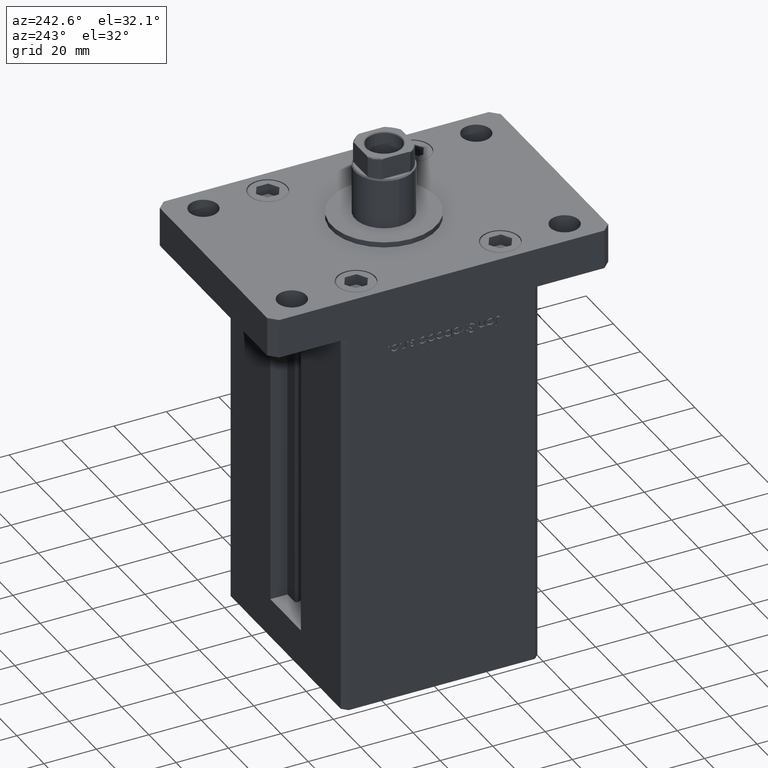
[diagram: clean part render]
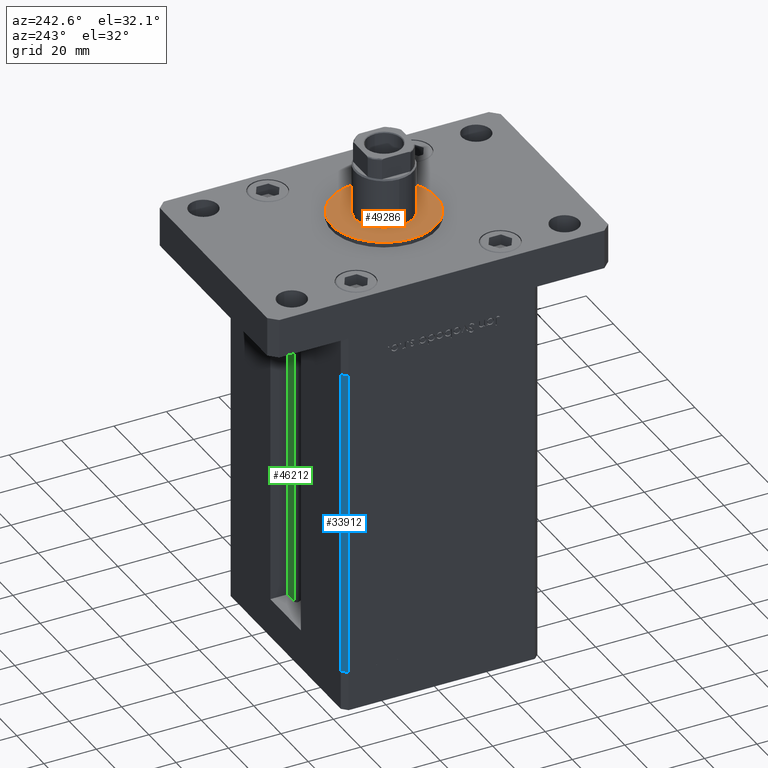
[diagram: same view with three faces highlighted in distinct colors, each labeled with its STEP entity id]
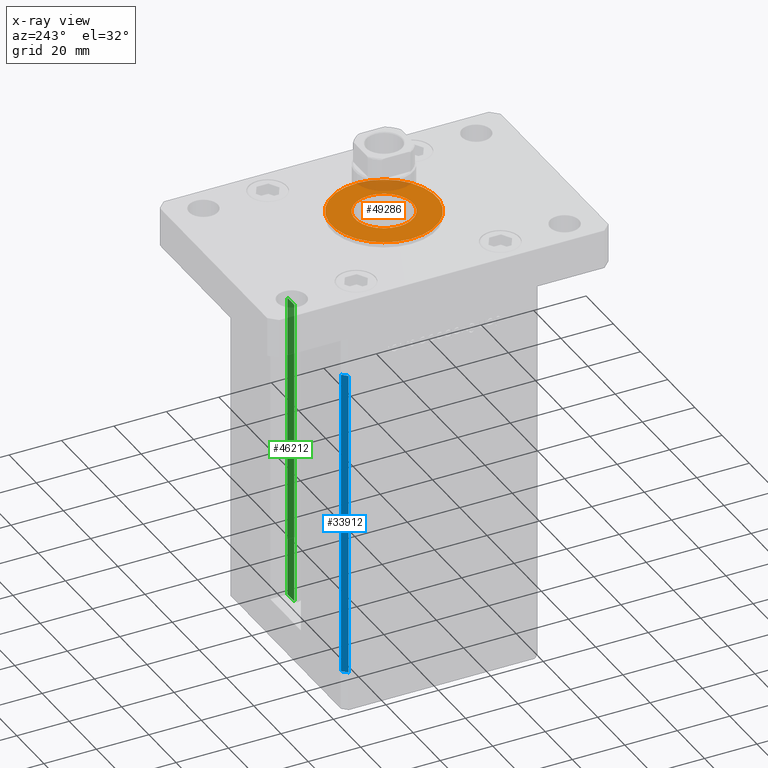
[diagram: x-ray of the same camera — body ghosted, the three highlighted faces saturated]
A machine part, auxiliary view with three faces highlighted in distinct colors.
The next image is the same camera in x-ray (body ghosted, the three faces saturated) — at least one of them is partly hidden behind the body in this view.
Their STEP definitions:

[orange] entity #49286 — the highlighted planar face has unit normal (0, 0, 1).
#1155 = ORIENTED_EDGE ( 'NONE', *, *, #30520, .F. ) ;
#1840 = EDGE_LOOP ( 'NONE', ( #47158, #18404 ) ) ;
#1953 = AXIS2_PLACEMENT_3D ( 'NONE', #23577, #27389, #27665 ) ;
#2030 = EDGE_LOOP ( 'NONE', ( #1155, #21170 ) ) ;
#4324 = CARTESIAN_POINT ( 'NONE',  ( 0.000000000000000000, 0.000000000000000000, 17.00000000000000000 ) ) ;
#5150 = FACE_OUTER_BOUND ( 'NONE', #1840, .T. ) ;
#5224 = CARTESIAN_POINT ( 'NONE',  ( 0.000000000000000000, 0.000000000000000000, 17.00000000000000000 ) ) ;
#5637 = DIRECTION ( 'NONE',  ( 0.000000000000000000, 0.000000000000000000, 1.000000000000000000 ) ) ;
#7093 = EDGE_CURVE ( 'NONE', #18251, #39305, #43932, .T. ) ;
#7567 = AXIS2_PLACEMENT_3D ( 'NONE', #30764, #46471, #43232 ) ;
#8769 = AXIS2_PLACEMENT_3D ( 'NONE', #15122, #5637, #51210 ) ;
#13087 = DIRECTION ( 'NONE',  ( 1.000000000000000000, 0.000000000000000000, 0.000000000000000000 ) ) ;
#15122 = CARTESIAN_POINT ( 'NONE',  ( 0.000000000000000000, 0.000000000000000000, 17.00000000000000000 ) ) ;
#16253 = CARTESIAN_POINT ( 'NONE',  ( -11.00000000000000000, 1.347111479062088405E-15, 17.00000000000000000 ) ) ;
#17131 = CIRCLE ( 'NONE', #18043, 11.00000000000000000 ) ;
#18043 = AXIS2_PLACEMENT_3D ( 'NONE', #5224, #21782, #13087 ) ;
#18251 = VERTEX_POINT ( 'NONE', #18386 ) ;
#18386 = CARTESIAN_POINT ( 'NONE',  ( -20.00000000000000000, 0.000000000000000000, 17.00000000000000000 ) ) ;
#18404 = ORIENTED_EDGE ( 'NONE', *, *, #20427, .T. ) ;
#19890 = CARTESIAN_POINT ( 'NONE',  ( 11.00000000000000000, 0.000000000000000000, 17.00000000000000000 ) ) ;
#20427 = EDGE_CURVE ( 'NONE', #39305, #18251, #52964, .T. ) ;
#20891 = DIRECTION ( 'NONE',  ( 1.000000000000000000, 0.000000000000000000, -0.000000000000000000 ) ) ;
#21170 = ORIENTED_EDGE ( 'NONE', *, *, #47084, .F. ) ;
#21709 = PLANE ( 'NONE',  #38351 ) ;
#21782 = DIRECTION ( 'NONE',  ( 0.000000000000000000, 0.000000000000000000, 1.000000000000000000 ) ) ;
#23577 = CARTESIAN_POINT ( 'NONE',  ( 0.000000000000000000, 0.000000000000000000, 17.00000000000000000 ) ) ;
#26212 = CIRCLE ( 'NONE', #1953, 11.00000000000000000 ) ;
#27389 = DIRECTION ( 'NONE',  ( 0.000000000000000000, 0.000000000000000000, 1.000000000000000000 ) ) ;
#27665 = DIRECTION ( 'NONE',  ( 1.000000000000000000, 0.000000000000000000, 0.000000000000000000 ) ) ;
#30520 = EDGE_CURVE ( 'NONE', #45566, #51689, #17131, .T. ) ;
#30572 = CARTESIAN_POINT ( 'NONE',  ( 20.00000000000000000, 2.449293598294706513E-15, 17.00000000000000000 ) ) ;
#30764 = CARTESIAN_POINT ( 'NONE',  ( 0.000000000000000000, 0.000000000000000000, 17.00000000000000000 ) ) ;
#38235 = DIRECTION ( 'NONE',  ( 0.000000000000000000, 0.000000000000000000, 1.000000000000000000 ) ) ;
#38351 = AXIS2_PLACEMENT_3D ( 'NONE', #4324, #38235, #20891 ) ;
#39305 = VERTEX_POINT ( 'NONE', #30572 ) ;
#43232 = DIRECTION ( 'NONE',  ( 1.000000000000000000, 0.000000000000000000, 0.000000000000000000 ) ) ;
#43932 = CIRCLE ( 'NONE', #7567, 20.00000000000000000 ) ;
#45566 = VERTEX_POINT ( 'NONE', #19890 ) ;
#46090 = FACE_BOUND ( 'NONE', #2030, .T. ) ;
#46471 = DIRECTION ( 'NONE',  ( 0.000000000000000000, 0.000000000000000000, 1.000000000000000000 ) ) ;
#47084 = EDGE_CURVE ( 'NONE', #51689, #45566, #26212, .T. ) ;
#47158 = ORIENTED_EDGE ( 'NONE', *, *, #7093, .T. ) ;
#49286 = ADVANCED_FACE ( 'NONE', ( #46090, #5150 ), #21709, .T. ) ;
#51210 = DIRECTION ( 'NONE',  ( 1.000000000000000000, 0.000000000000000000, 0.000000000000000000 ) ) ;
#51689 = VERTEX_POINT ( 'NONE', #16253 ) ;
#52964 = CIRCLE ( 'NONE', #8769, 20.00000000000000000 ) ;

[blue] entity #33912 — the highlighted planar face has unit normal (0.7071, -0.7071, 0).
#5002 = CARTESIAN_POINT ( 'NONE',  ( -40.50000000000000000, 37.50000000000000711, 118.5000000000000000 ) ) ;
#5090 = VERTEX_POINT ( 'NONE', #26779 ) ;
#6417 = CARTESIAN_POINT ( 'NONE',  ( -40.50000000000000000, 37.50000000000000711, 0.000000000000000000 ) ) ;
#8222 = ORIENTED_EDGE ( 'NONE', *, *, #34910, .F. ) ;
#8542 = LINE ( 'NONE', #50300, #17295 ) ;
#8975 = EDGE_CURVE ( 'NONE', #12056, #51624, #50294, .T. ) ;
#10357 = EDGE_CURVE ( 'NONE', #5090, #30359, #53663, .T. ) ;
#12056 = VERTEX_POINT ( 'NONE', #6417 ) ;
#14532 = DIRECTION ( 'NONE',  ( -0.000000000000000000, -0.000000000000000000, -1.000000000000000000 ) ) ;
#15064 = LINE ( 'NONE', #51681, #38158 ) ;
#16544 = ORIENTED_EDGE ( 'NONE', *, *, #10357, .F. ) ;
#17295 = VECTOR ( 'NONE', #29710, 1000.000000000000000 ) ;
#21120 = ORIENTED_EDGE ( 'NONE', *, *, #42918, .T. ) ;
#21286 = CARTESIAN_POINT ( 'NONE',  ( -40.50000000000000000, 37.50000000000000711, 0.000000000000000000 ) ) ;
#21564 = DIRECTION ( 'NONE',  ( 0.7071067811865451302, -0.7071067811865500152, 0.000000000000000000 ) ) ;
#26779 = CARTESIAN_POINT ( 'NONE',  ( -40.50000000000000000, 37.50000000000000711, 118.5000000000000000 ) ) ;
#29710 = DIRECTION ( 'NONE',  ( -0.000000000000000000, -0.000000000000000000, -1.000000000000000000 ) ) ;
#29960 = FACE_OUTER_BOUND ( 'NONE', #44130, .T. ) ;
#30243 = DIRECTION ( 'NONE',  ( 0.7071067811865500152, 0.7071067811865451302, 0.000000000000000000 ) ) ;
#30359 = VERTEX_POINT ( 'NONE', #48106 ) ;
#31893 = VECTOR ( 'NONE', #50125, 1000.000000000000114 ) ;
#32793 = CARTESIAN_POINT ( 'NONE',  ( -40.50000000000000000, 37.50000000000000711, 118.5000000000000000 ) ) ;
#33912 = ADVANCED_FACE ( 'NONE', ( #29960 ), #34027, .F. ) ;
#34027 = PLANE ( 'NONE',  #39773 ) ;
#34910 = EDGE_CURVE ( 'NONE', #30359, #51624, #8542, .T. ) ;
#36351 = CARTESIAN_POINT ( 'NONE',  ( -42.50000000000000711, 35.50000000000001421, 0.000000000000000000 ) ) ;
#38097 = DIRECTION ( 'NONE',  ( -0.7071067811865500152, -0.7071067811865451302, 0.000000000000000000 ) ) ;
#38158 = VECTOR ( 'NONE', #14532, 1000.000000000000000 ) ;
#39773 = AXIS2_PLACEMENT_3D ( 'NONE', #5002, #21564, #30243 ) ;
#42918 = EDGE_CURVE ( 'NONE', #5090, #12056, #15064, .T. ) ;
#44130 = EDGE_LOOP ( 'NONE', ( #49319, #8222, #16544, #21120 ) ) ;
#44843 = VECTOR ( 'NONE', #38097, 1000.000000000000114 ) ;
#48106 = CARTESIAN_POINT ( 'NONE',  ( -42.50000000000000711, 35.50000000000001421, 118.5000000000000000 ) ) ;
#49319 = ORIENTED_EDGE ( 'NONE', *, *, #8975, .T. ) ;
#50125 = DIRECTION ( 'NONE',  ( -0.7071067811865500152, -0.7071067811865451302, 0.000000000000000000 ) ) ;
#50294 = LINE ( 'NONE', #21286, #44843 ) ;
#50300 = CARTESIAN_POINT ( 'NONE',  ( -42.50000000000000711, 35.50000000000001421, 118.5000000000000000 ) ) ;
#51624 = VERTEX_POINT ( 'NONE', #36351 ) ;
#51681 = CARTESIAN_POINT ( 'NONE',  ( -40.50000000000000000, 37.50000000000000711, 118.5000000000000000 ) ) ;
#53663 = LINE ( 'NONE', #32793, #31893 ) ;

[green] entity #46212 — the highlighted planar face has unit normal (0, -1, 0).
#51 = CARTESIAN_POINT ( 'NONE',  ( 11.25000000000000000, 30.99999999999999289, 118.5000000000000000 ) ) ;
#3835 = VECTOR ( 'NONE', #16382, 1000.000000000000000 ) ;
#4743 = CARTESIAN_POINT ( 'NONE',  ( 6.183333333333999704, 30.99999999999999289, 118.5000000000000000 ) ) ;
#5647 = VERTEX_POINT ( 'NONE', #51 ) ;
#6275 = DIRECTION ( 'NONE',  ( -0.000000000000000000, -0.000000000000000000, 1.000000000000000000 ) ) ;
#6440 = EDGE_LOOP ( 'NONE', ( #19448, #25118, #25324, #50483 ) ) ;
#8008 = DIRECTION ( 'NONE',  ( 0.000000000000000000, -0.000000000000000000, -1.000000000000000000 ) ) ;
#10228 = VECTOR ( 'NONE', #43264, 1000.000000000000000 ) ;
#10589 = DIRECTION ( 'NONE',  ( -1.000000000000000000, 0.000000000000000000, 0.000000000000000000 ) ) ;
#13710 = VERTEX_POINT ( 'NONE', #4743 ) ;
#14791 = CARTESIAN_POINT ( 'NONE',  ( 11.25000000000000000, 30.99999999999999289, 0.000000000000000000 ) ) ;
#15880 = CARTESIAN_POINT ( 'NONE',  ( 6.183333333333999704, 30.99999999999999289, 0.000000000000000000 ) ) ;
#16382 = DIRECTION ( 'NONE',  ( 1.000000000000000000, 0.000000000000000000, 0.000000000000000000 ) ) ;
#19448 = ORIENTED_EDGE ( 'NONE', *, *, #30705, .F. ) ;
#24035 = FACE_OUTER_BOUND ( 'NONE', #6440, .T. ) ;
#24802 = CARTESIAN_POINT ( 'NONE',  ( 6.183333333333999704, 30.99999999999999289, 0.000000000000000000 ) ) ;
#25118 = ORIENTED_EDGE ( 'NONE', *, *, #52775, .F. ) ;
#25324 = ORIENTED_EDGE ( 'NONE', *, *, #44683, .T. ) ;
#27006 = LINE ( 'NONE', #14791, #10228 ) ;
#29677 = LINE ( 'NONE', #24802, #3835 ) ;
#30705 = EDGE_CURVE ( 'NONE', #49704, #5647, #27006, .T. ) ;
#34655 = VECTOR ( 'NONE', #10589, 1000.000000000000000 ) ;
#35001 = LINE ( 'NONE', #47182, #34655 ) ;
#35563 = LINE ( 'NONE', #46470, #48638 ) ;
#36257 = EDGE_CURVE ( 'NONE', #5647, #13710, #35001, .T. ) ;
#36960 = CARTESIAN_POINT ( 'NONE',  ( 11.25000000000000000, 30.99999999999999289, 0.000000000000000000 ) ) ;
#40572 = DIRECTION ( 'NONE',  ( 0.000000000000000000, -1.000000000000000000, 0.000000000000000000 ) ) ;
#43264 = DIRECTION ( 'NONE',  ( -0.000000000000000000, -0.000000000000000000, 1.000000000000000000 ) ) ;
#44683 = EDGE_CURVE ( 'NONE', #45198, #13710, #35563, .T. ) ;
#45198 = VERTEX_POINT ( 'NONE', #52772 ) ;
#46212 = ADVANCED_FACE ( 'NONE', ( #24035 ), #53288, .F. ) ;
#46470 = CARTESIAN_POINT ( 'NONE',  ( 6.183333333333999704, 30.99999999999999289, 0.000000000000000000 ) ) ;
#46939 = AXIS2_PLACEMENT_3D ( 'NONE', #15880, #40572, #8008 ) ;
#47182 = CARTESIAN_POINT ( 'NONE',  ( 0.000000000000000000, 30.99999999999999289, 118.5000000000000000 ) ) ;
#48638 = VECTOR ( 'NONE', #6275, 1000.000000000000000 ) ;
#49704 = VERTEX_POINT ( 'NONE', #36960 ) ;
#50483 = ORIENTED_EDGE ( 'NONE', *, *, #36257, .F. ) ;
#52772 = CARTESIAN_POINT ( 'NONE',  ( 6.183333333333999704, 30.99999999999999289, 0.000000000000000000 ) ) ;
#52775 = EDGE_CURVE ( 'NONE', #45198, #49704, #29677, .T. ) ;
#53288 = PLANE ( 'NONE',  #46939 ) ;